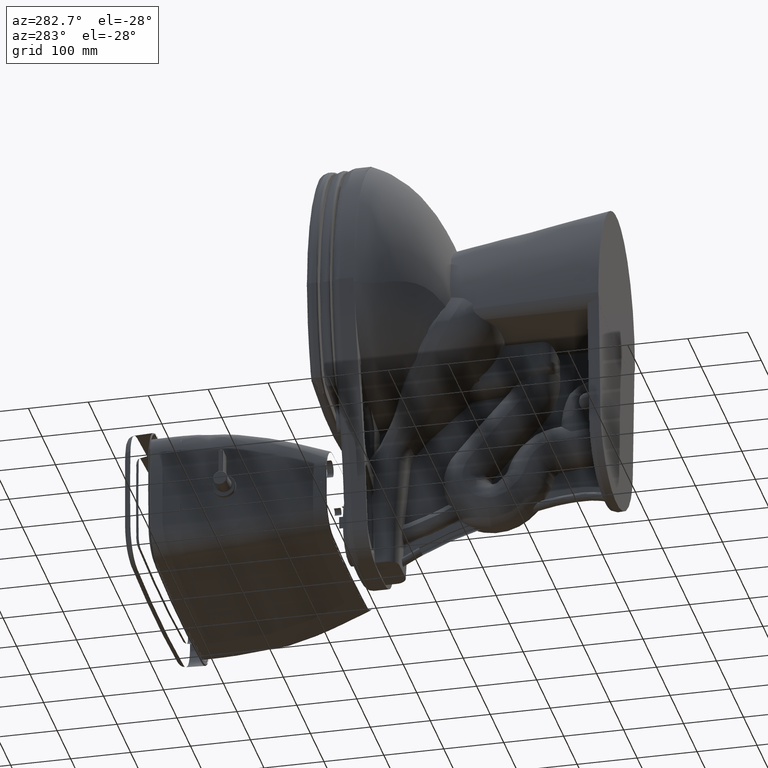
[diagram: clean part render]
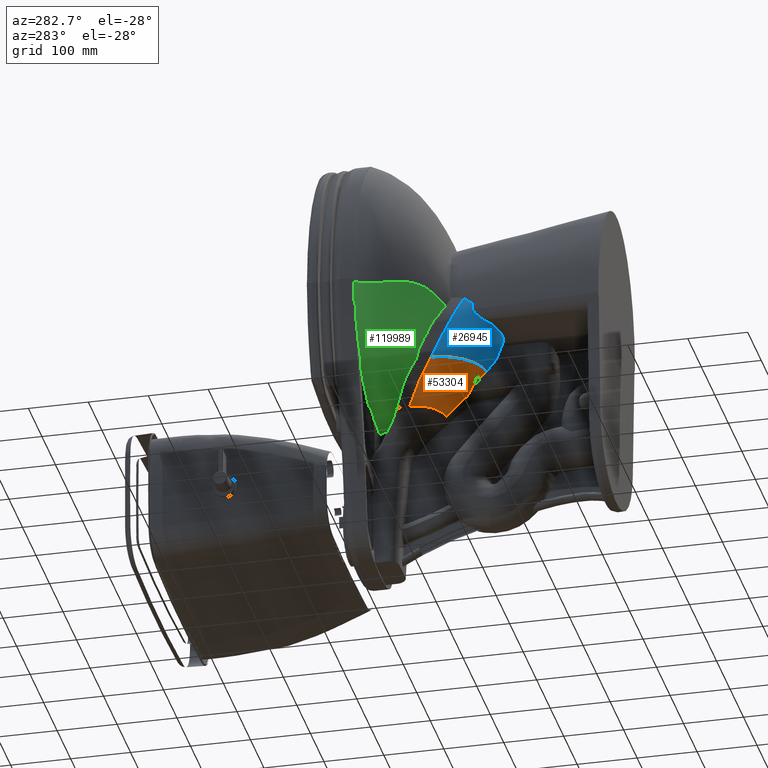
[diagram: same view with three faces highlighted in distinct colors, each labeled with its STEP entity id]
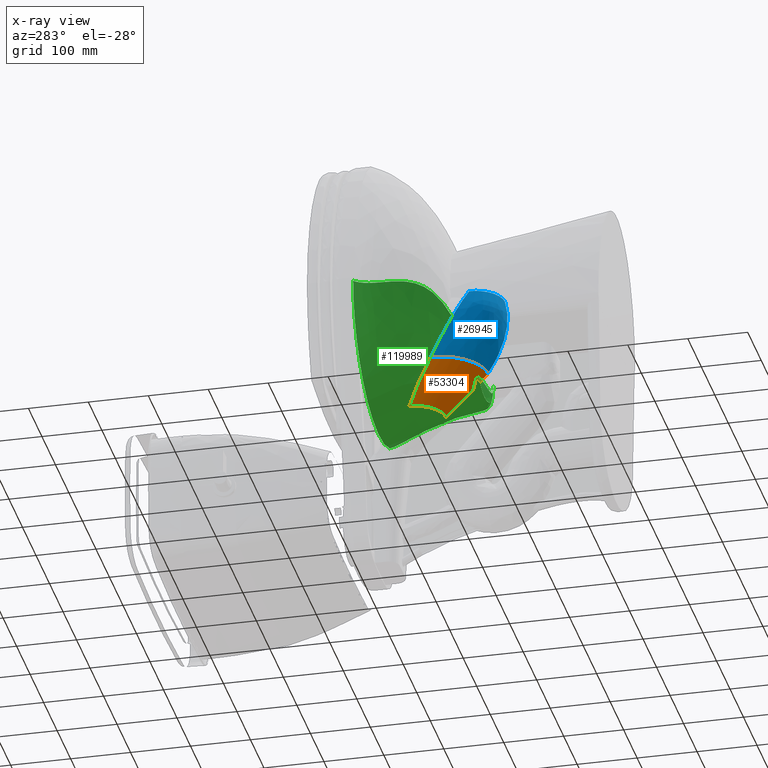
[diagram: x-ray of the same camera — body ghosted, the three highlighted faces saturated]
A machine part, auxiliary view with three faces highlighted in distinct colors.
The next image is the same camera in x-ray (body ghosted, the three faces saturated) — at least one of them is partly hidden behind the body in this view.
Their STEP definitions:

[orange] entity #53304 — the highlighted face is a freeform B-spline surface patch.
#1001 = CARTESIAN_POINT ( 'NONE',  ( -1.892381464892130400, 4.462790076188178500, 11.16585042781416700 ) ) ;
#6612 = CARTESIAN_POINT ( 'NONE',  ( -2.943228851656299200, 1.903734958077992100, 8.436176721992126200 ) ) ;
#7295 = CARTESIAN_POINT ( 'NONE',  ( -1.915925019896456600, 1.903734958077992100, 8.112348213983859000 ) ) ;
#7711 = CARTESIAN_POINT ( 'NONE',  ( -4.393510826751969100, 1.903734958077992100, 11.15675106931692900 ) ) ;
#10832 = CARTESIAN_POINT ( 'NONE',  ( -2.840624079415748200, 4.462790076188189100, 12.92327787286811300 ) ) ;
#11481 = CARTESIAN_POINT ( 'NONE',  ( -4.085884962374016100, 1.903734958077992100, 9.596953902951575800 ) ) ;
#12126 = CARTESIAN_POINT ( 'NONE',  ( -2.862125368702362700, 3.203159283023465000, 9.984134485972440100 ) ) ;
#12801 = CARTESIAN_POINT ( 'NONE',  ( -2.441000872669685200, 3.203159283023465000, 9.715832439691732600 ) ) ;
#14248 = ORIENTED_EDGE ( 'NONE', *, *, #124139, .T. ) ;
#14441 = VERTEX_POINT ( 'NONE', #45039 ) ;
#17318 = CARTESIAN_POINT ( 'NONE',  ( -3.397611238813385900, 1.903734958077992100, 8.745085372279922000 ) ) ;
#22007 = CARTESIAN_POINT ( 'NONE',  ( -3.784163340549212800, 1.903734958077992100, 9.137767697905511400 ) ) ;
#26821 = CARTESIAN_POINT ( 'NONE',  ( -2.840624079415748200, 4.462790076188189100, 12.58140111984409300 ) ) ;
#27467 = CARTESIAN_POINT ( 'NONE',  ( -1.892381464892126200, 4.462790076188189100, 11.16585042781417600 ) ) ;
#28116 = CARTESIAN_POINT ( 'NONE',  ( -0.8818145732267715900, 4.462790076188189100, 10.96446836667913500 ) ) ;
#28764 = CARTESIAN_POINT ( 'NONE',  ( -3.397611238814567200, 1.903734958077992100, 8.745085372283071500 ) ) ;
#28888 = VERTEX_POINT ( 'NONE', #68734 ) ;
#37306 = CARTESIAN_POINT ( 'NONE',  ( -2.441772136739370300, 1.903734958077992100, 8.223177012472440600 ) ) ;
#42167 = CARTESIAN_POINT ( 'NONE',  ( -3.503307590135433400, 3.203159283023465000, 10.74498764066023600 ) ) ;
#44126 = CARTESIAN_POINT ( 'NONE',  ( -3.784163340548425400, 1.903734958077992100, 9.137767697902361900 ) ) ;
#45039 = CARTESIAN_POINT ( 'NONE',  ( -1.388464618494881900, 1.903734958077992100, 8.104048656448425100 ) ) ;
#48979 = B_SPLINE_CURVE_WITH_KNOTS ( 'NONE', 2,
 ( #99799, #190576, #160521 ),
 .UNSPECIFIED., .F., .F.,
 ( 3, 3 ),
 ( 0.0000000000000000000, 1.000000000000000000 ),
 .UNSPECIFIED. ) ;
#53304 = ADVANCED_FACE ( 'NONE', ( #156156 ), #118037, .T. ) ;
#58149 = CARTESIAN_POINT ( 'NONE',  ( -2.189068299499606200, 4.462790076188189100, 11.36328876077165400 ) ) ;
#61096 = ORIENTED_EDGE ( 'NONE', *, *, #176976, .F. ) ;
#62152 = EDGE_CURVE ( 'NONE', #160420, #14441, #69359, .T. ) ;
#66936 = B_SPLINE_CURVE_WITH_KNOTS ( 'NONE', 9,
 ( #78463, #92446, #185186, #1001, #169154, #139106, #137117, #75835, #182569, #107800 ),
 .UNSPECIFIED., .F., .F.,
 ( 10, 10 ),
 ( 0.0000000000000000000, 0.07772330144107994500 ),
 .UNSPECIFIED. ) ;
#68734 = CARTESIAN_POINT ( 'NONE',  ( -2.840624079415748200, 4.462790076188188200, 12.92327787286811300 ) ) ;
#69359 = B_SPLINE_CURVE_WITH_KNOTS ( 'NONE', 9,
 ( #139347, #154698, #155361, #170073, #22007, #17318, #6612, #37306, #7295, #94011 ),
 .UNSPECIFIED., .F., .F.,
 ( 10, 10 ),
 ( 3.000000000000000000, 4.000000000000000000 ),
 .UNSPECIFIED. ) ;
#72883 = CARTESIAN_POINT ( 'NONE',  ( -3.790636930821654100, 3.203159283023465000, 11.67932123552165400 ) ) ;
#73536 = CARTESIAN_POINT ( 'NONE',  ( -2.773496741359449100, 4.462790076188189100, 12.23952436192283400 ) ) ;
#74370 = CARTESIAN_POINT ( 'NONE',  ( -3.790636930821654100, 3.203159283023465000, 12.15744765915393600 ) ) ;
#75028 = CARTESIAN_POINT ( 'NONE',  ( -4.393510826751969100, 1.903734958077992100, 11.15675106931692900 ) ) ;
#75835 = CARTESIAN_POINT ( 'NONE',  ( -2.773496741359456700, 4.462790076188178500, 12.23952436192282500 ) ) ;
#78463 = CARTESIAN_POINT ( 'NONE',  ( -0.8818145732267715900, 4.462790076188190000, 10.96446836667913500 ) ) ;
#86263 = ORIENTED_EDGE ( 'NONE', *, *, #62152, .F. ) ;
#87591 = CARTESIAN_POINT ( 'NONE',  ( -1.497779165953149900, 3.203159283023465000, 9.458197919957481000 ) ) ;
#88232 = CARTESIAN_POINT ( 'NONE',  ( -2.441803685320472500, 4.462790076188189100, 11.61602414659842700 ) ) ;
#88878 = CARTESIAN_POINT ( 'NONE',  ( -1.978854172615354600, 3.203159283023465000, 9.538794456246456800 ) ) ;
#89523 = CARTESIAN_POINT ( 'NONE',  ( -1.915925019896456600, 1.903734958077992100, 8.112348213983464600 ) ) ;
#92446 = CARTESIAN_POINT ( 'NONE',  ( -1.223691326250396100, 4.462790076188178500, 10.96446836667951500 ) ) ;
#94011 = CARTESIAN_POINT ( 'NONE',  ( -1.388464618494881900, 1.903734958077992100, 8.104048656448425100 ) ) ;
#99552 = B_SPLINE_CURVE_WITH_KNOTS ( 'NONE', 2,
 ( #197107, #74370, #75028 ),
 .UNSPECIFIED., .F., .F.,
 ( 3, 3 ),
 ( 0.0000000000000000000, 1.000000000000000000 ),
 .UNSPECIFIED. ) ;
#99799 = CARTESIAN_POINT ( 'NONE',  ( -0.8818145732267715900, 4.462790076188190000, 10.96446836667913500 ) ) ;
#102241 = CARTESIAN_POINT ( 'NONE',  ( -4.393510826751969100, 1.903734958077992100, 10.62922537543819100 ) ) ;
#104199 = CARTESIAN_POINT ( 'NONE',  ( -1.565568084173228500, 4.462790076188189100, 11.03159570473464500 ) ) ;
#104330 = ORIENTED_EDGE ( 'NONE', *, *, #171774, .F. ) ;
#107800 = CARTESIAN_POINT ( 'NONE',  ( -2.840624079415748200, 4.462790076188188200, 12.92327787286811300 ) ) ;
#116075 = EDGE_LOOP ( 'NONE', ( #104330, #14248, #86263, #61096 ) ) ;
#117592 = CARTESIAN_POINT ( 'NONE',  ( -3.790636930821654100, 3.203159283023465000, 12.15744765915393600 ) ) ;
#118037 = B_SPLINE_SURFACE_WITH_KNOTS ( 'NONE', 9, 2, ( 
 ( #180286, #195633, #28116 ),
 ( #89523, #87591, #120199 ),
 ( #193683, #88878, #104199 ),
 ( #118877, #12801, #27467 ),
 ( #28764, #12126, #58149 ),
 ( #44126, #164259, #88232 ),
 ( #11481, #42167, #148890 ),
 ( #150202, #118229, #73536 ),
 ( #102241, #72883, #26821 ),
 ( #163608, #117592, #10832 ) ),
 .UNSPECIFIED., .F., .F., .F.,
 ( 10, 10 ),
 ( 3, 3 ),
 ( 5.000000000000000000, 6.000000000000000000 ),
 ( 0.0000000000000000000, 1.000000000000000000 ),
 .UNSPECIFIED. ) ;
#118229 = CARTESIAN_POINT ( 'NONE',  ( -3.694860509549212900, 3.203159283023465000, 11.20119480366259900 ) ) ;
#118877 = CARTESIAN_POINT ( 'NONE',  ( -2.943228851655511800, 1.903734958077992100, 8.436176721990158000 ) ) ;
#120199 = CARTESIAN_POINT ( 'NONE',  ( -1.223691326250393900, 4.462790076188189100, 10.96446836667952800 ) ) ;
#124139 = EDGE_CURVE ( 'NONE', #190556, #14441, #48979, .T. ) ;
#137117 = CARTESIAN_POINT ( 'NONE',  ( -2.639242018282685000, 4.462790076188178500, 11.91271098120078000 ) ) ;
#139106 = CARTESIAN_POINT ( 'NONE',  ( -2.441803685320478300, 4.462790076188178500, 11.61602414659842000 ) ) ;
#139347 = CARTESIAN_POINT ( 'NONE',  ( -4.393510826751969100, 1.903734958077992100, 11.15675106931692900 ) ) ;
#148890 = CARTESIAN_POINT ( 'NONE',  ( -2.639242018282677000, 4.462790076188189100, 11.91271098120078900 ) ) ;
#150202 = CARTESIAN_POINT ( 'NONE',  ( -4.290968894169291800, 1.903734958077992100, 10.10169967470905500 ) ) ;
#154698 = CARTESIAN_POINT ( 'NONE',  ( -4.393510826751969100, 1.903734958077992100, 10.62922537543819100 ) ) ;
#155361 = CARTESIAN_POINT ( 'NONE',  ( -4.290968894173228200, 1.903734958077992100, 10.10169967471023600 ) ) ;
#156156 = FACE_OUTER_BOUND ( 'NONE', #116075, .T. ) ;
#160420 = VERTEX_POINT ( 'NONE', #7711 ) ;
#160521 = CARTESIAN_POINT ( 'NONE',  ( -1.388464618494881900, 1.903734958077992100, 8.104048656448425100 ) ) ;
#163608 = CARTESIAN_POINT ( 'NONE',  ( -4.393510826751969100, 1.903734958077992100, 11.15675106931692900 ) ) ;
#164259 = CARTESIAN_POINT ( 'NONE',  ( -3.221829120500000300, 3.203159283023465000, 10.33261866553149800 ) ) ;
#169154 = CARTESIAN_POINT ( 'NONE',  ( -2.189068299499612000, 4.462790076188178500, 11.36328876077164200 ) ) ;
#170073 = CARTESIAN_POINT ( 'NONE',  ( -4.085884962374016100, 1.903734958077992100, 9.596953902949211500 ) ) ;
#171774 = EDGE_CURVE ( 'NONE', #190556, #28888, #66936, .T. ) ;
#176976 = EDGE_CURVE ( 'NONE', #28888, #160420, #99552, .T. ) ;
#179421 = CARTESIAN_POINT ( 'NONE',  ( -0.8818145732267715900, 4.462790076188190000, 10.96446836667913500 ) ) ;
#180286 = CARTESIAN_POINT ( 'NONE',  ( -1.388464618494881900, 1.903734958077992100, 8.104048656448425100 ) ) ;
#182569 = CARTESIAN_POINT ( 'NONE',  ( -2.840624079415756200, 4.462790076188178500, 12.58140111984408600 ) ) ;
#185186 = CARTESIAN_POINT ( 'NONE',  ( -1.565568084173231800, 4.462790076188178500, 11.03159570473463300 ) ) ;
#190556 = VERTEX_POINT ( 'NONE', #179421 ) ;
#190576 = CARTESIAN_POINT ( 'NONE',  ( -1.019693265791732400, 3.203159283023465000, 9.473369678014567100 ) ) ;
#193683 = CARTESIAN_POINT ( 'NONE',  ( -2.441772136739764200, 1.903734958077992100, 8.223177012473621900 ) ) ;
#195633 = CARTESIAN_POINT ( 'NONE',  ( -1.019693265791732400, 3.203159283023465000, 9.473369678014567100 ) ) ;
#197107 = CARTESIAN_POINT ( 'NONE',  ( -2.840624079415748200, 4.462790076188188200, 12.92327787286811300 ) ) ;

[blue] entity #26945 — the highlighted face is a freeform B-spline surface patch.
#1624 = CARTESIAN_POINT ( 'NONE',  ( -1.388464618494881900, 1.903734958077992100, 8.104048656448425100 ) ) ;
#2297 = CARTESIAN_POINT ( 'NONE',  ( -3.000337579233464800, -0.3697319241518897700, 6.131298935419290600 ) ) ;
#2965 = CARTESIAN_POINT ( 'NONE',  ( -4.026041468263780000, -2.781304412000393800, 8.742642208779923200 ) ) ;
#6612 = CARTESIAN_POINT ( 'NONE',  ( -2.943228851656299200, 1.903734958077992100, 8.436176721992126200 ) ) ;
#7295 = CARTESIAN_POINT ( 'NONE',  ( -1.915925019896456600, 1.903734958077992100, 8.112348213983859000 ) ) ;
#7711 = CARTESIAN_POINT ( 'NONE',  ( -4.393510826751969100, 1.903734958077992100, 11.15675106931692900 ) ) ;
#10372 = CARTESIAN_POINT ( 'NONE',  ( -4.026041468263780000, -2.781304412000393400, 8.742642208779923200 ) ) ;
#14441 = VERTEX_POINT ( 'NONE', #45039 ) ;
#17028 = CARTESIAN_POINT ( 'NONE',  ( -2.421160693537401700, -0.3697319241518897700, 6.111285145184251800 ) ) ;
#17318 = CARTESIAN_POINT ( 'NONE',  ( -3.397611238813385900, 1.903734958077992100, 8.745085372279922000 ) ) ;
#17683 = CARTESIAN_POINT ( 'NONE',  ( -3.784163340549212800, 1.903734958077992100, 9.137767697905511400 ) ) ;
#18332 = CARTESIAN_POINT ( 'NONE',  ( -5.037334570460630300, -0.3697319241518897700, 7.283844695076377100 ) ) ;
#20697 = ORIENTED_EDGE ( 'NONE', *, *, #90565, .F. ) ;
#22007 = CARTESIAN_POINT ( 'NONE',  ( -3.784163340549212800, 1.903734958077992100, 9.137767697905511400 ) ) ;
#24149 = B_SPLINE_CURVE_WITH_KNOTS ( 'NONE', 2,
 ( #195363, #87977, #148630 ),
 .UNSPECIFIED., .F., .F.,
 ( 3, 3 ),
 ( 0.0000000000000000000, 1.000000000000000000 ),
 .UNSPECIFIED. ) ;
#26945 = ADVANCED_FACE ( 'NONE', ( #44022 ), #40067, .T. ) ;
#32345 = CARTESIAN_POINT ( 'NONE',  ( -5.698691972350394200, -0.3697319241518897700, 9.503881537098426000 ) ) ;
#32994 = CARTESIAN_POINT ( 'NONE',  ( -3.575646813302362200, -0.3697319241518897700, 6.262532612844882600 ) ) ;
#34325 = CARTESIAN_POINT ( 'NONE',  ( -3.094705738536220000, -2.781304412000393800, 7.016549174238976500 ) ) ;
#37268 = CARTESIAN_POINT ( 'NONE',  ( -5.698691972350394200, -0.3697319241518897700, 9.503881537098426000 ) ) ;
#37306 = CARTESIAN_POINT ( 'NONE',  ( -2.441772136739370300, 1.903734958077992100, 8.223177012472440600 ) ) ;
#40067 = B_SPLINE_SURFACE_WITH_KNOTS ( 'NONE', 9, 2, ( 
 ( #65006, #17028, #1624 ),
 ( #123743, #2297, #108424 ),
 ( #93082, #32994, #50295 ),
 ( #34325, #170439, #141035 ),
 ( #186462, #48342, #171749 ),
 ( #125716, #18332, #17683 ),
 ( #80392, #157043, #187132 ),
 ( #140371, #77778, #95697 ),
 ( #155076, #156393, #95025 ),
 ( #2965, #32345, #184512 ) ),
 .UNSPECIFIED., .F., .F., .F.,
 ( 10, 10 ),
 ( 3, 3 ),
 ( 3.000000000000000000, 4.000000000000000000 ),
 ( 0.0000000000000000000, 1.000000000000000000 ),
 .UNSPECIFIED. ) ;
#44022 = FACE_OUTER_BOUND ( 'NONE', #123560, .T. ) ;
#44596 = CARTESIAN_POINT ( 'NONE',  ( -3.828249989598020900, -2.781304412000410200, 7.750093425298426400 ) ) ;
#45039 = CARTESIAN_POINT ( 'NONE',  ( -1.388464618494881900, 1.903734958077992100, 8.104048656448425100 ) ) ;
#48342 = CARTESIAN_POINT ( 'NONE',  ( -4.617261390889764200, -0.3697319241518897700, 6.848995820709054900 ) ) ;
#50295 = CARTESIAN_POINT ( 'NONE',  ( -2.441772136739370300, 1.903734958077992100, 8.223177012472440600 ) ) ;
#59936 = CARTESIAN_POINT ( 'NONE',  ( -3.386102734807078500, -2.781304412000410200, 7.210467240233466400 ) ) ;
#62152 = EDGE_CURVE ( 'NONE', #160420, #14441, #69359, .T. ) ;
#65006 = CARTESIAN_POINT ( 'NONE',  ( -2.102156955056692800, -2.781304412000393800, 6.818757695573229900 ) ) ;
#69359 = B_SPLINE_CURVE_WITH_KNOTS ( 'NONE', 9,
 ( #139347, #154698, #155361, #170073, #22007, #17318, #6612, #37306, #7295, #94011 ),
 .UNSPECIFIED., .F., .F.,
 ( 10, 10 ),
 ( 3.000000000000000000, 4.000000000000000000 ),
 .UNSPECIFIED. ) ;
#72433 = B_SPLINE_CURVE_WITH_KNOTS ( 'NONE', 2,
 ( #176059, #37268, #115360 ),
 .UNSPECIFIED., .F., .F.,
 ( 3, 3 ),
 ( 0.0000000000000000000, 1.000000000000000000 ),
 .UNSPECIFIED. ) ;
#73655 = VERTEX_POINT ( 'NONE', #95603 ) ;
#77778 = CARTESIAN_POINT ( 'NONE',  ( -5.587424111086615900, -0.3697319241518897700, 8.345031415048032000 ) ) ;
#79014 = ORIENTED_EDGE ( 'NONE', *, *, #182838, .F. ) ;
#80392 = CARTESIAN_POINT ( 'NONE',  ( -3.828249989598032000, -2.781304412000393800, 7.750093425298426400 ) ) ;
#84298 = B_SPLINE_CURVE_WITH_KNOTS ( 'NONE', 9,
 ( #105323, #121984, #168008, #44596, #89978, #59936, #182058, #169320, #90645, #197397 ),
 .UNSPECIFIED., .F., .F.,
 ( 10, 10 ),
 ( 0.0000000000000000000, 0.07633751800762000900 ),
 .UNSPECIFIED. ) ;
#87977 = CARTESIAN_POINT ( 'NONE',  ( -2.421160693537401700, -0.3697319241518897700, 6.111285145184251800 ) ) ;
#89978 = CARTESIAN_POINT ( 'NONE',  ( -3.634331923601565400, -2.781304412000410200, 7.458696429031499000 ) ) ;
#90565 = EDGE_CURVE ( 'NONE', #73655, #14441, #24149, .T. ) ;
#90645 = CARTESIAN_POINT ( 'NONE',  ( -2.437938146892515900, -2.781304412000410200, 6.818757695573233400 ) ) ;
#93082 = CARTESIAN_POINT ( 'NONE',  ( -2.773719343539763600, -2.781304412000393800, 6.884688173085039300 ) ) ;
#94011 = CARTESIAN_POINT ( 'NONE',  ( -1.388464618494881900, 1.903734958077992100, 8.104048656448425100 ) ) ;
#95025 = CARTESIAN_POINT ( 'NONE',  ( -4.393510826751969100, 1.903734958077992100, 10.62922537543819100 ) ) ;
#95603 = CARTESIAN_POINT ( 'NONE',  ( -2.102156955056692800, -2.781304412000395100, 6.818757695573229900 ) ) ;
#95697 = CARTESIAN_POINT ( 'NONE',  ( -4.290968894173228200, 1.903734958077992100, 10.10169967471023600 ) ) ;
#105323 = CARTESIAN_POINT ( 'NONE',  ( -4.026041468263780000, -2.781304412000393400, 8.742642208779923200 ) ) ;
#108424 = CARTESIAN_POINT ( 'NONE',  ( -1.915925019896456600, 1.903734958077992100, 8.112348213983859000 ) ) ;
#110788 = ORIENTED_EDGE ( 'NONE', *, *, #148249, .F. ) ;
#115360 = CARTESIAN_POINT ( 'NONE',  ( -4.026041468263780000, -2.781304412000393400, 8.742642208779923200 ) ) ;
#121984 = CARTESIAN_POINT ( 'NONE',  ( -4.026041468263769300, -2.781304412000410200, 8.406861016943699000 ) ) ;
#123560 = EDGE_LOOP ( 'NONE', ( #196462, #20697, #110788, #79014 ) ) ;
#123743 = CARTESIAN_POINT ( 'NONE',  ( -2.437938146892519900, -2.781304412000393800, 6.818757695573229900 ) ) ;
#125716 = CARTESIAN_POINT ( 'NONE',  ( -3.634331923601575200, -2.781304412000393800, 7.458696429031496300 ) ) ;
#132368 = VERTEX_POINT ( 'NONE', #10372 ) ;
#139347 = CARTESIAN_POINT ( 'NONE',  ( -4.393510826751969100, 1.903734958077992100, 11.15675106931692900 ) ) ;
#140371 = CARTESIAN_POINT ( 'NONE',  ( -3.960110990748031400, -2.781304412000393800, 8.071079820297637000 ) ) ;
#141035 = CARTESIAN_POINT ( 'NONE',  ( -2.943228851656299200, 1.903734958077992100, 8.436176721992126200 ) ) ;
#148249 = EDGE_CURVE ( 'NONE', #132368, #73655, #84298, .T. ) ;
#148630 = CARTESIAN_POINT ( 'NONE',  ( -1.388464618494881900, 1.903734958077992100, 8.104048656448425100 ) ) ;
#154698 = CARTESIAN_POINT ( 'NONE',  ( -4.393510826751969100, 1.903734958077992100, 10.62922537543819100 ) ) ;
#155076 = CARTESIAN_POINT ( 'NONE',  ( -4.026041468263780000, -2.781304412000393800, 8.406861016943700800 ) ) ;
#155361 = CARTESIAN_POINT ( 'NONE',  ( -4.290968894173228200, 1.903734958077992100, 10.10169967471023600 ) ) ;
#156393 = CARTESIAN_POINT ( 'NONE',  ( -5.698691972350394200, -0.3697319241518897700, 8.924456479390945800 ) ) ;
#157043 = CARTESIAN_POINT ( 'NONE',  ( -5.364888322744095100, -0.3697319241518897700, 7.790022273398032700 ) ) ;
#160420 = VERTEX_POINT ( 'NONE', #7711 ) ;
#168008 = CARTESIAN_POINT ( 'NONE',  ( -3.960110990748020300, -2.781304412000410200, 8.071079820297635300 ) ) ;
#169320 = CARTESIAN_POINT ( 'NONE',  ( -2.773719343539758200, -2.781304412000410200, 6.884688173085043800 ) ) ;
#170073 = CARTESIAN_POINT ( 'NONE',  ( -4.085884962374016100, 1.903734958077992100, 9.596953902949211500 ) ) ;
#170439 = CARTESIAN_POINT ( 'NONE',  ( -4.122683062803149700, -0.3697319241518897700, 6.504132046900394000 ) ) ;
#171749 = CARTESIAN_POINT ( 'NONE',  ( -3.397611238813385900, 1.903734958077992100, 8.745085372279922000 ) ) ;
#176059 = CARTESIAN_POINT ( 'NONE',  ( -4.393510826751969100, 1.903734958077992100, 11.15675106931692900 ) ) ;
#182058 = CARTESIAN_POINT ( 'NONE',  ( -3.094705738536213300, -2.781304412000410200, 7.016549174238978300 ) ) ;
#182838 = EDGE_CURVE ( 'NONE', #160420, #132368, #72433, .T. ) ;
#184512 = CARTESIAN_POINT ( 'NONE',  ( -4.393510826751969100, 1.903734958077992100, 11.15675106931692900 ) ) ;
#186462 = CARTESIAN_POINT ( 'NONE',  ( -3.386102734807086500, -2.781304412000393800, 7.210467240233464600 ) ) ;
#187132 = CARTESIAN_POINT ( 'NONE',  ( -4.085884962374016100, 1.903734958077992100, 9.596953902949211500 ) ) ;
#195363 = CARTESIAN_POINT ( 'NONE',  ( -2.102156955056692800, -2.781304412000395100, 6.818757695573229900 ) ) ;
#196462 = ORIENTED_EDGE ( 'NONE', *, *, #62152, .T. ) ;
#197397 = CARTESIAN_POINT ( 'NONE',  ( -2.102156955056692800, -2.781304412000395100, 6.818757695573229900 ) ) ;

[green] entity #119989 — the highlighted face is a freeform B-spline surface patch.
#5392 = EDGE_CURVE ( 'NONE', #188904, #163000, #19866, .T. ) ;
#5642 = CARTESIAN_POINT ( 'NONE',  ( 6.679293237067716900, 0.4176901114155511800, 13.03506114503070800 ) ) ;
#6293 = CARTESIAN_POINT ( 'NONE',  ( 7.502595079616535900, -2.542807854365354300, 15.57880248497756000 ) ) ;
#6945 = CARTESIAN_POINT ( 'NONE',  ( -3.273995783562204700, 2.826379558845197000, 9.359748595877954700 ) ) ;
#7638 = CARTESIAN_POINT ( 'NONE',  ( -0.02734784648279528100, 4.737603065288189100, 10.72428480833779600 ) ) ;
#9386 = CARTESIAN_POINT ( 'NONE',  ( -2.487700658114960600, 0.7760593976044094500, 8.595337918048425500 ) ) ;
#11048 = CARTESIAN_POINT ( 'NONE',  ( -7.489386986007874100, -2.542807854365354300, 15.57880248497756000 ) ) ;
#11311 = CARTESIAN_POINT ( 'NONE',  ( -0.04448198581582701200, 3.196085160711890100, 8.595337918048425500 ) ) ;
#13006 = CARTESIAN_POINT ( 'NONE',  ( -2.487700658114960600, 0.7760593976044094500, 8.595337918048425500 ) ) ;
#13031 = CARTESIAN_POINT ( 'NONE',  ( -2.487700658114960600, 0.7760593976044094500, 8.595337918048425500 ) ) ;
#13268 = CARTESIAN_POINT ( 'NONE',  ( 0.002595114137376572300, 5.661862733318509200, 15.57880248497756900 ) ) ;
#13924 = CARTESIAN_POINT ( 'NONE',  ( 5.829205436337008300, 3.034539590102677000, 15.57880248497756900 ) ) ;
#19866 = B_SPLINE_CURVE_WITH_KNOTS ( 'NONE', 4,
 ( #37471, #172292, #144221, #52814, #174964 ),
 .UNSPECIFIED., .F., .F.,
 ( 5, 5 ),
 ( 0.0000000000000000000, 1.000000000000000000 ),
 .UNSPECIFIED. ) ;
#20014 = B_SPLINE_CURVE_WITH_KNOTS ( 'NONE', 12,
 ( #9386, #192874, #39389, #87437, #146151, #194175, #11311, #162795, #133368, #71421, #57340, #116143, #164099 ),
 .UNSPECIFIED., .F., .F.,
 ( 13, 13 ),
 ( 0.0000000000000000000, 0.1849050404745247700 ),
 .UNSPECIFIED. ) ;
#20358 = CARTESIAN_POINT ( 'NONE',  ( -2.169306119272441000, 4.237425546523622800, 13.03506114503070800 ) ) ;
#21010 = CARTESIAN_POINT ( 'NONE',  ( 7.507568591868504400, -0.6278470548622048200, 15.57880248497756000 ) ) ;
#21682 = CARTESIAN_POINT ( 'NONE',  ( 4.144320674917716800, 0.6167595773857087500, 10.72428480833779600 ) ) ;
#22337 = CARTESIAN_POINT ( 'NONE',  ( 1.375913948639173400, 4.248481688483464900, 13.03506114503070800 ) ) ;
#22995 = CARTESIAN_POINT ( 'NONE',  ( 4.066656004050393800, -4.509580563377952900, 10.72428480833779600 ) ) ;
#24317 = CARTESIAN_POINT ( 'NONE',  ( -5.492066497696850300, 1.494374965708701100, 9.359748595877954700 ) ) ;
#24973 = CARTESIAN_POINT ( 'NONE',  ( -4.215119508236220700, 2.531669658104173800, 9.359748595877954700 ) ) ;
#29899 = CARTESIAN_POINT ( 'NONE',  ( 2.206510872572560200, 5.346536722590949300, 15.57880248497756900 ) ) ;
#30559 = CARTESIAN_POINT ( 'NONE',  ( -7.496231858921265500, -0.6278470548622052700, 15.57880248497756900 ) ) ;
#34141 = ORIENTED_EDGE ( 'NONE', *, *, #156587, .T. ) ;
#36324 = CARTESIAN_POINT ( 'NONE',  ( -0.04448198581582676900, 3.196085160711890100, 8.595337918048425500 ) ) ;
#36981 = CARTESIAN_POINT ( 'NONE',  ( -3.347295904843307300, 2.860238144844173400, 10.72428480833779600 ) ) ;
#36996 = ORIENTED_EDGE ( 'NONE', *, *, #5392, .T. ) ;
#37471 = CARTESIAN_POINT ( 'NONE',  ( 7.502595079616535900, -2.542807854365354300, 15.57880248497756000 ) ) ;
#37631 = CARTESIAN_POINT ( 'NONE',  ( 7.194545120527165800, -1.065686514369291300, 13.03506114503070800 ) ) ;
#38312 = CARTESIAN_POINT ( 'NONE',  ( 0.2185048364928740300, 3.185443430111614100, 9.359748595877954700 ) ) ;
#39389 = CARTESIAN_POINT ( 'NONE',  ( -2.378815580437400300, 1.898593714222874200, 8.595337918048425500 ) ) ;
#39904 = CARTESIAN_POINT ( 'NONE',  ( -7.489386986007874100, -2.542807854365354300, 15.57880248497756000 ) ) ;
#40567 = VERTEX_POINT ( 'NONE', #39904 ) ;
#42630 = CARTESIAN_POINT ( 'NONE',  ( 6.949921320572834700, 1.288760570818543200, 15.57880248497756900 ) ) ;
#51657 = CARTESIAN_POINT ( 'NONE',  ( -0.3993326663527558800, 4.421071753270866500, 13.03506114503070800 ) ) ;
#52325 = CARTESIAN_POINT ( 'NONE',  ( 4.437008528440551400, -1.920644250368110500, 10.72428480833779600 ) ) ;
#52814 = CARTESIAN_POINT ( 'NONE',  ( 6.596312115390944100, 1.820482742307953000, 9.359748595877954700 ) ) ;
#52984 = CARTESIAN_POINT ( 'NONE',  ( 1.739680627282322900, 4.211114197396851100, 10.72428480833779600 ) ) ;
#53644 = CARTESIAN_POINT ( 'NONE',  ( -1.479577025894488300, 2.841304019509842700, 8.595337918048425500 ) ) ;
#54300 = CARTESIAN_POINT ( 'NONE',  ( -2.532835578412204700, 1.331938574559370400, 8.595337918048425500 ) ) ;
#56917 = CARTESIAN_POINT ( 'NONE',  ( -6.940457557622047500, 1.288760570819330600, 15.57880248497756000 ) ) ;
#57340 = CARTESIAN_POINT ( 'NONE',  ( 2.236828580216454500, 1.819296305345668300, 8.595337918048425500 ) ) ;
#58610 = CARTESIAN_POINT ( 'NONE',  ( 4.206906953277955300, 4.436833358433861300, 15.57880248497756900 ) ) ;
#59267 = CARTESIAN_POINT ( 'NONE',  ( -2.201012497662206100, 5.346536722589768000, 15.57880248497756900 ) ) ;
#59318 = B_SPLINE_CURVE_WITH_KNOTS ( 'NONE', 12,
 ( #146786, #118046, #42630, #13924, #58610, #29899, #13268, #59267, #76001, #166042, #74016, #30559, #89984 ),
 .UNSPECIFIED., .F., .F.,
 ( 13, 13 ),
 ( 0.0000000000000000000, 0.5945761596383855000 ),
 .UNSPECIFIED. ) ;
#61184 = CARTESIAN_POINT ( 'NONE',  ( 2.301141624116850500, 0.6937864209002755400, 8.595337918048425500 ) ) ;
#66364 = CARTESIAN_POINT ( 'NONE',  ( 6.596312115390944100, 1.820482742307953000, 9.359748595877954700 ) ) ;
#67025 = CARTESIAN_POINT ( 'NONE',  ( -3.837101087083071100, 3.706297195321771800, 13.03506114503070800 ) ) ;
#67689 = CARTESIAN_POINT ( 'NONE',  ( -0.7988286072188977000, 3.111054378988661100, 8.595337918048425500 ) ) ;
#68345 = CARTESIAN_POINT ( 'NONE',  ( 2.301141624116850500, 0.6937864209002755400, 8.595337918048425500 ) ) ;
#69012 = CARTESIAN_POINT ( 'NONE',  ( 5.919105692795668900, 2.420238515735196700, 9.359748595877954700 ) ) ;
#69081 = EDGE_LOOP ( 'NONE', ( #107147, #34141, #179858, #36996 ) ) ;
#69679 = CARTESIAN_POINT ( 'NONE',  ( -6.511064472645669500, 1.724627097080078800, 13.03506114503070800 ) ) ;
#71421 = CARTESIAN_POINT ( 'NONE',  ( 1.900092268278148500, 2.353254467364605400, 8.595337918048425500 ) ) ;
#74016 = CARTESIAN_POINT ( 'NONE',  ( -6.940457557622047500, 1.288760570819330600, 15.57880248497756900 ) ) ;
#76001 = CARTESIAN_POINT ( 'NONE',  ( -4.200519587291340800, 4.436833358435829500, 15.57880248497756900 ) ) ;
#81760 = CARTESIAN_POINT ( 'NONE',  ( 5.785274296148818600, 1.759379478288464600, 13.03506114503070800 ) ) ;
#83076 = CARTESIAN_POINT ( 'NONE',  ( -2.193541298027559300, 3.009534603646181400, 9.359748595877954700 ) ) ;
#84418 = CARTESIAN_POINT ( 'NONE',  ( 3.058906875498661000, 3.727375930456495700, 13.03506114503070800 ) ) ;
#85059 = CARTESIAN_POINT ( 'NONE',  ( -2.487700658114960600, 0.7760593976044094500, 8.595337918048425500 ) ) ;
#87437 = CARTESIAN_POINT ( 'NONE',  ( -2.021142199902755000, 2.420621821109488100, 8.595337918048425500 ) ) ;
#89984 = CARTESIAN_POINT ( 'NONE',  ( -7.489386986007874100, -2.542807854365354300, 15.57880248497756000 ) ) ;
#96383 = EDGE_CURVE ( 'NONE', #188904, #40567, #59318, .T. ) ;
#97711 = CARTESIAN_POINT ( 'NONE',  ( 2.730783613609212500, 3.194014379892835100, 9.359748595877954700 ) ) ;
#98379 = CARTESIAN_POINT ( 'NONE',  ( -4.389160558846456600, 0.7499442826977165100, 10.72428480833779600 ) ) ;
#99042 = CARTESIAN_POINT ( 'NONE',  ( 1.900092268278149600, 2.353254467364606300, 8.595337918048425500 ) ) ;
#106582 = FACE_OUTER_BOUND ( 'NONE', #69081, .T. ) ;
#107147 = ORIENTED_EDGE ( 'NONE', *, *, #176091, .F. ) ;
#111759 = CARTESIAN_POINT ( 'NONE',  ( 0.002595114137376378400, 5.661862733318504800, 15.57880248497756000 ) ) ;
#112422 = CARTESIAN_POINT ( 'NONE',  ( 5.829205436337008300, 3.034539590102677000, 15.57880248497756000 ) ) ;
#113083 = CARTESIAN_POINT ( 'NONE',  ( 6.949921320572834700, 1.288760570818543200, 15.57880248497756000 ) ) ;
#113532 = B_SPLINE_CURVE_WITH_KNOTS ( 'NONE', 4,
 ( #13031, #148471, #163190, #150421, #11048 ),
 .UNSPECIFIED., .F., .F.,
 ( 5, 5 ),
 ( 0.0000000000000000000, 1.000000000000000000 ),
 .UNSPECIFIED. ) ;
#113736 = CARTESIAN_POINT ( 'NONE',  ( 3.925752100552598800, 3.081689133975630500, 9.359748595877954700 ) ) ;
#115063 = CARTESIAN_POINT ( 'NONE',  ( -7.496231858921261100, -0.6278470548622048200, 15.57880248497756000 ) ) ;
#116143 = CARTESIAN_POINT ( 'NONE',  ( 2.368281163491965400, 1.247736707016691800, 8.595337918048425500 ) ) ;
#117670 = CARTESIAN_POINT ( 'NONE',  ( -4.807730867779527600, -1.762069291144488200, 10.72428480833779600 ) ) ;
#118046 = CARTESIAN_POINT ( 'NONE',  ( 7.507568591868508900, -0.6278470548622052700, 15.57880248497756900 ) ) ;
#119989 = ADVANCED_FACE ( 'NONE', ( #106582 ), #155684, .F. ) ;
#123341 = CARTESIAN_POINT ( 'NONE',  ( 7.502595079616535900, -2.542807854365354300, 15.57880248497756000 ) ) ;
#127722 = CARTESIAN_POINT ( 'NONE',  ( 1.375571990993386100, 2.792252162149763800, 8.595337918048425500 ) ) ;
#129030 = CARTESIAN_POINT ( 'NONE',  ( 2.236828580216456700, 1.819296305345669400, 8.595337918048425500 ) ) ;
#129700 = CARTESIAN_POINT ( 'NONE',  ( 4.206906953277952600, 4.436833358433858600, 15.57880248497756000 ) ) ;
#130342 = CARTESIAN_POINT ( 'NONE',  ( -2.378815580437401600, 1.898593714222874200, 8.595337918048425500 ) ) ;
#132957 = CARTESIAN_POINT ( 'NONE',  ( -3.761165755958661500, -6.668494375519685500, 10.72428480833779600 ) ) ;
#133368 = CARTESIAN_POINT ( 'NONE',  ( 1.375571990993385000, 2.792252162149763800, 8.595337918048425500 ) ) ;
#143053 = CARTESIAN_POINT ( 'NONE',  ( -2.201012497662205200, 5.346536722589763500, 15.57880248497756000 ) ) ;
#144221 = CARTESIAN_POINT ( 'NONE',  ( 3.115850271504803500, -6.838957422110236300, 10.72428480833779600 ) ) ;
#144390 = CARTESIAN_POINT ( 'NONE',  ( 3.203845849763503800, 2.764036743057086500, 10.72428480833779600 ) ) ;
#145040 = CARTESIAN_POINT ( 'NONE',  ( -1.017059217088189100, 3.119416472868228800, 9.359748595877954700 ) ) ;
#145719 = CARTESIAN_POINT ( 'NONE',  ( -2.021142199902755900, 2.420621821109488100, 8.595337918048425500 ) ) ;
#146151 = CARTESIAN_POINT ( 'NONE',  ( -1.479577025894487100, 2.841304019509842700, 8.595337918048425500 ) ) ;
#146786 = CARTESIAN_POINT ( 'NONE',  ( 7.502595079616535900, -2.542807854365354300, 15.57880248497756000 ) ) ;
#148471 = CARTESIAN_POINT ( 'NONE',  ( -5.492066497696850300, 1.494374965708701100, 9.359748595877954700 ) ) ;
#150421 = CARTESIAN_POINT ( 'NONE',  ( -7.857060986259842400, -1.103057459248818900, 13.03506114503070800 ) ) ;
#155684 = B_SPLINE_SURFACE_WITH_KNOTS ( 'NONE', 12, 4, ( 
 ( #6293, #37631, #189169, #66364, #68345 ),
 ( #21010, #5642, #22995, #69012, #175130 ),
 ( #113083, #81760, #52325, #173797, #129030 ),
 ( #112422, #174456, #21682, #113736, #99042 ),
 ( #129700, #84418, #144390, #97711, #127722 ),
 ( #159082, #22337, #52984, #175778, #159746 ),
 ( #111759, #51657, #7638, #38312, #36324 ),
 ( #143053, #20358, #173124, #145040, #67689 ),
 ( #158434, #67025, #36981, #83076, #53644 ),
 ( #160423, #189824, #98379, #6945, #145719 ),
 ( #56917, #69679, #117670, #24973, #130342 ),
 ( #115063, #194410, #162378, #163689, #54300 ),
 ( #161072, #176425, #132957, #24317, #85059 ) ),
 .UNSPECIFIED., .F., .F., .F.,
 ( 13, 13 ),
 ( 5, 5 ),
 ( 1.000000000000000000, 2.000000000000000000 ),
 ( 0.0000000000000000000, 1.000000000000000000 ),
 .UNSPECIFIED. ) ;
#156587 = EDGE_CURVE ( 'NONE', #158532, #40567, #113532, .T. ) ;
#158434 = CARTESIAN_POINT ( 'NONE',  ( -4.200519587291339000, 4.436833358435826800, 15.57880248497756000 ) ) ;
#158532 = VERTEX_POINT ( 'NONE', #13006 ) ;
#159082 = CARTESIAN_POINT ( 'NONE',  ( 2.206510872572559300, 5.346536722590944800, 15.57880248497756000 ) ) ;
#159746 = CARTESIAN_POINT ( 'NONE',  ( 0.7059802356510237500, 3.085201553695787100, 8.595337918048425500 ) ) ;
#160423 = CARTESIAN_POINT ( 'NONE',  ( -5.821447704220472200, 3.034539590101142300, 15.57880248497756000 ) ) ;
#161072 = CARTESIAN_POINT ( 'NONE',  ( -7.489386986007874100, -2.542807854365354300, 15.57880248497756000 ) ) ;
#162378 = CARTESIAN_POINT ( 'NONE',  ( -4.575068417834645900, -4.338596789409448800, 10.72428480833779600 ) ) ;
#162795 = CARTESIAN_POINT ( 'NONE',  ( 0.7059802356510231900, 3.085201553695787100, 8.595337918048425500 ) ) ;
#163000 = VERTEX_POINT ( 'NONE', #61184 ) ;
#163190 = CARTESIAN_POINT ( 'NONE',  ( -3.761165755958661500, -6.668494375519685500, 10.72428480833779600 ) ) ;
#163689 = CARTESIAN_POINT ( 'NONE',  ( -4.969583836881889200, 2.092853077356259900, 9.359748595877954700 ) ) ;
#164099 = CARTESIAN_POINT ( 'NONE',  ( 2.301141624116850500, 0.6937864209002755400, 8.595337918048425500 ) ) ;
#166042 = CARTESIAN_POINT ( 'NONE',  ( -5.821447704220472200, 3.034539590101142300, 15.57880248497756900 ) ) ;
#172292 = CARTESIAN_POINT ( 'NONE',  ( 7.194545120527165800, -1.065686514369291300, 13.03506114503070800 ) ) ;
#173124 = CARTESIAN_POINT ( 'NONE',  ( -1.817237235814173100, 4.261575912705511700, 10.72428480833779600 ) ) ;
#173797 = CARTESIAN_POINT ( 'NONE',  ( 5.009073459801181900, 2.835498141511299000, 9.359748595877954700 ) ) ;
#174456 = CARTESIAN_POINT ( 'NONE',  ( 4.556371946958662100, 2.883119922919843000, 13.03506114503070800 ) ) ;
#174964 = CARTESIAN_POINT ( 'NONE',  ( 2.301141624116850500, 0.6937864209002755400, 8.595337918048425500 ) ) ;
#175130 = CARTESIAN_POINT ( 'NONE',  ( 2.368281163491968900, 1.247736707016692900, 8.595337918048425500 ) ) ;
#175778 = CARTESIAN_POINT ( 'NONE',  ( 1.479885294847598500, 3.216204585105354200, 9.359748595877954700 ) ) ;
#176091 = EDGE_CURVE ( 'NONE', #158532, #163000, #20014, .T. ) ;
#176425 = CARTESIAN_POINT ( 'NONE',  ( -7.857060986259842400, -1.103057459248818900, 13.03506114503070800 ) ) ;
#179858 = ORIENTED_EDGE ( 'NONE', *, *, #96383, .F. ) ;
#188904 = VERTEX_POINT ( 'NONE', #123341 ) ;
#189169 = CARTESIAN_POINT ( 'NONE',  ( 3.115850271504803500, -6.838957422110236300, 10.72428480833779600 ) ) ;
#189824 = CARTESIAN_POINT ( 'NONE',  ( -5.311184810078740000, 2.853935342759763600, 13.03506114503070800 ) ) ;
#192874 = CARTESIAN_POINT ( 'NONE',  ( -2.532835578412202500, 1.331938574559369300, 8.595337918048425500 ) ) ;
#194175 = CARTESIAN_POINT ( 'NONE',  ( -0.7988286072188971500, 3.111054378988661100, 8.595337918048425500 ) ) ;
#194410 = CARTESIAN_POINT ( 'NONE',  ( -7.373348744625984900, 0.3802124859747638100, 13.03506114503070800 ) ) ;